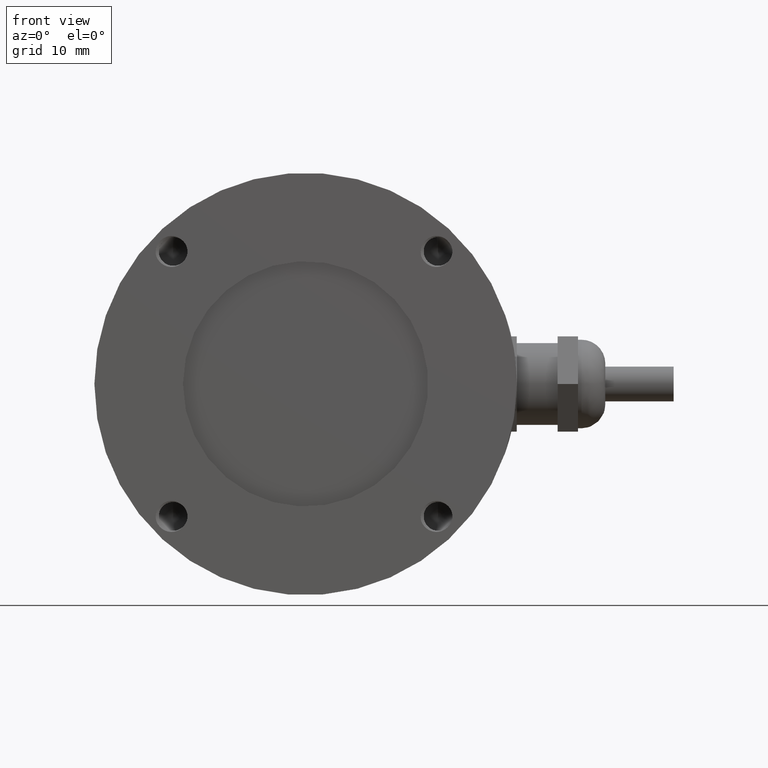
[diagram: clean part render]
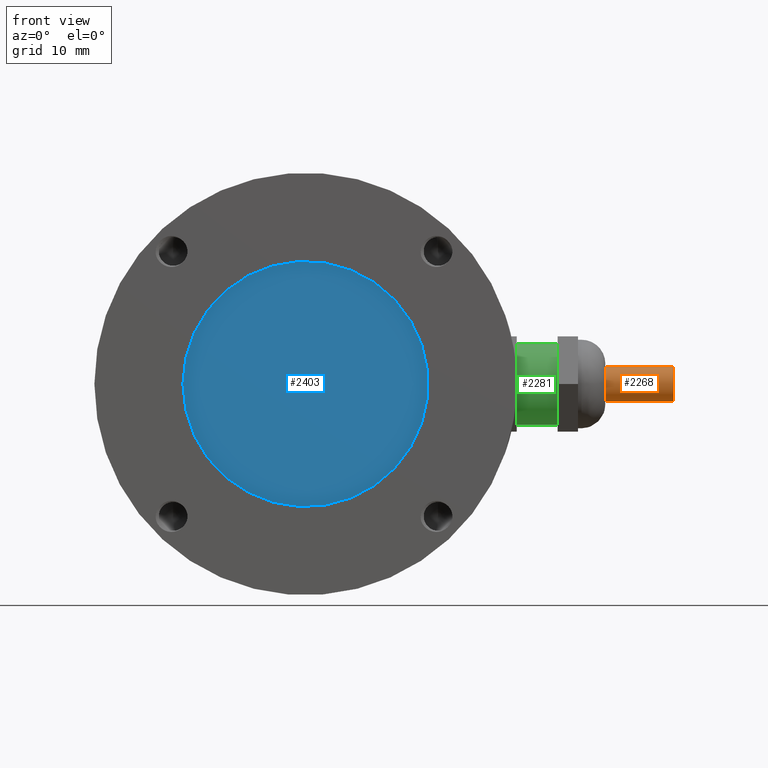
[diagram: same view with three faces highlighted in distinct colors, each labeled with its STEP entity id]
A machine part, front view with three faces highlighted in distinct colors.
Their STEP definitions:

[orange] entity #2268 — the highlighted cylindrical surface (bore or boss wall) has radius 2.55 mm, axis along (1, 0, 0).
#255=FACE_OUTER_BOUND('',#398,.T.);
#398=EDGE_LOOP('',(#1458,#1459,#1460,#1461));
#553=LINE('',#3122,#687);
#687=VECTOR('',#2624,2.55);
#822=CIRCLE('',#2430,2.55);
#823=CIRCLE('',#2431,2.55);
#869=VERTEX_POINT('',#3119);
#870=VERTEX_POINT('',#3121);
#1100=EDGE_CURVE('',#869,#869,#822,.T.);
#1101=EDGE_CURVE('',#869,#870,#553,.T.);
#1102=EDGE_CURVE('',#870,#870,#823,.T.);
#1458=ORIENTED_EDGE('',*,*,#1100,.F.);
#1459=ORIENTED_EDGE('',*,*,#1101,.T.);
#1460=ORIENTED_EDGE('',*,*,#1102,.F.);
#1461=ORIENTED_EDGE('',*,*,#1101,.F.);
#2166=CYLINDRICAL_SURFACE('',#2429,2.55);
#2268=ADVANCED_FACE('',(#255),#2166,.T.);
#2429=AXIS2_PLACEMENT_3D('',#3118,#2620,#2621);
#2430=AXIS2_PLACEMENT_3D('',#3120,#2622,#2623);
#2431=AXIS2_PLACEMENT_3D('',#3123,#2625,#2626);
#2620=DIRECTION('center_axis',(1.,0.,0.));
#2621=DIRECTION('ref_axis',(0.,0.,-1.));
#2622=DIRECTION('center_axis',(1.,0.,0.));
#2623=DIRECTION('ref_axis',(0.,0.,-1.));
#2624=DIRECTION('',(-1.,0.,0.));
#2625=DIRECTION('center_axis',(-1.,0.,0.));
#2626=DIRECTION('ref_axis',(0.,0.,-1.));
#3118=CARTESIAN_POINT('Origin',(16.,0.,0.));
#3119=CARTESIAN_POINT('',(26.03,-3.12284933782575E-16,2.55));
#3120=CARTESIAN_POINT('Origin',(26.03,0.,0.));
#3121=CARTESIAN_POINT('',(16.,-3.12284933782575E-16,2.55));
#3122=CARTESIAN_POINT('',(16.,-3.12284933782575E-16,2.55));
#3123=CARTESIAN_POINT('Origin',(16.,0.,0.));

[blue] entity #2403 — the highlighted planar face has unit normal (0, 1, 0).
#250=PLANE('',#2594);
#390=FACE_OUTER_BOUND('',#539,.T.);
#539=EDGE_LOOP('',(#2128));
#860=CIRCLE('',#2593,18.);
#1090=VERTEX_POINT('',#9402);
#1444=EDGE_CURVE('',#1090,#1090,#860,.T.);
#2128=ORIENTED_EDGE('',*,*,#1444,.F.);
#2403=ADVANCED_FACE('',(#390),#250,.F.);
#2593=AXIS2_PLACEMENT_3D('',#9404,#3079,#3080);
#2594=AXIS2_PLACEMENT_3D('',#9405,#3081,#3082);
#3079=DIRECTION('center_axis',(0.,1.,0.));
#3080=DIRECTION('ref_axis',(1.,0.,0.));
#3081=DIRECTION('center_axis',(0.,1.,0.));
#3082=DIRECTION('ref_axis',(1.,0.,0.));
#9402=CARTESIAN_POINT('',(-18.,1.,2.20436423846524E-15));
#9404=CARTESIAN_POINT('Origin',(0.,1.,0.));
#9405=CARTESIAN_POINT('Origin',(0.,1.,0.));

[green] entity #2281 — the highlighted cylindrical surface (bore or boss wall) has radius 6 mm, axis along (1, 0, 0).
#268=FACE_OUTER_BOUND('',#414,.T.);
#414=EDGE_LOOP('',(#1511,#1512,#1513,#1514));
#573=LINE('',#3204,#707);
#707=VECTOR('',#2680,6.);
#828=CIRCLE('',#2440,6.);
#829=CIRCLE('',#2449,6.);
#880=VERTEX_POINT('',#3175);
#887=VERTEX_POINT('',#3203);
#1114=EDGE_CURVE('',#880,#880,#828,.T.);
#1127=EDGE_CURVE('',#880,#887,#573,.T.);
#1128=EDGE_CURVE('',#887,#887,#829,.T.);
#1511=ORIENTED_EDGE('',*,*,#1114,.F.);
#1512=ORIENTED_EDGE('',*,*,#1127,.T.);
#1513=ORIENTED_EDGE('',*,*,#1128,.F.);
#1514=ORIENTED_EDGE('',*,*,#1127,.F.);
#2168=CYLINDRICAL_SURFACE('',#2448,6.);
#2281=ADVANCED_FACE('',(#268),#2168,.T.);
#2440=AXIS2_PLACEMENT_3D('',#3176,#2650,#2651);
#2448=AXIS2_PLACEMENT_3D('',#3202,#2678,#2679);
#2449=AXIS2_PLACEMENT_3D('',#3205,#2681,#2682);
#2650=DIRECTION('center_axis',(1.,0.,0.));
#2651=DIRECTION('ref_axis',(0.,0.,-1.));
#2678=DIRECTION('center_axis',(1.,0.,0.));
#2679=DIRECTION('ref_axis',(0.,0.,-1.));
#2680=DIRECTION('',(-1.,0.,0.));
#2681=DIRECTION('center_axis',(-1.,0.,0.));
#2682=DIRECTION('ref_axis',(0.,0.,-1.));
#3175=CARTESIAN_POINT('',(9.,-7.34788079488412E-16,6.));
#3176=CARTESIAN_POINT('Origin',(9.,0.,0.));
#3202=CARTESIAN_POINT('Origin',(3.,0.,0.));
#3203=CARTESIAN_POINT('',(3.,-7.34788079488412E-16,6.));
#3204=CARTESIAN_POINT('',(3.,-7.34788079488412E-16,6.));
#3205=CARTESIAN_POINT('Origin',(3.,0.,0.));